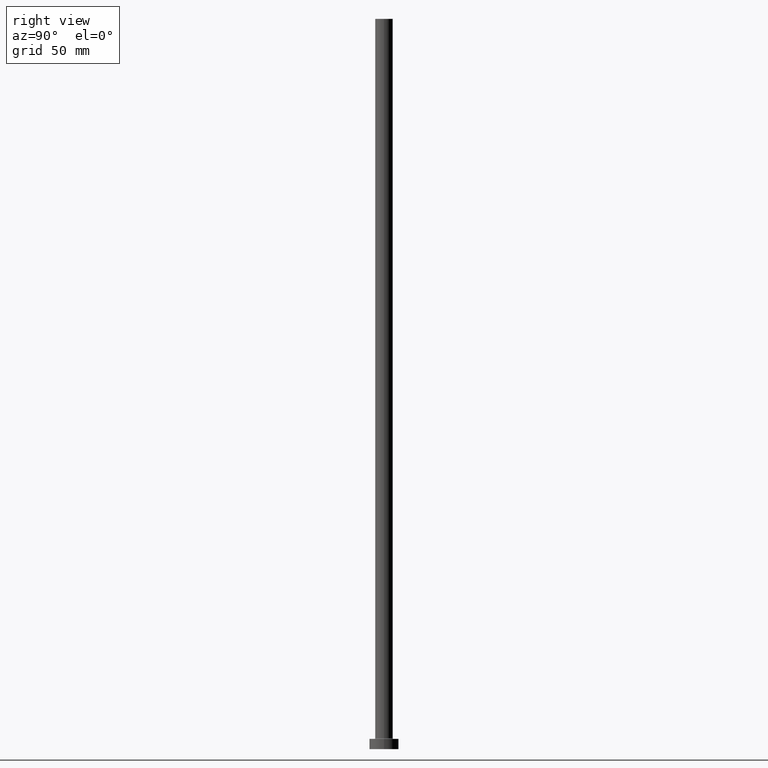
[diagram: clean part render]
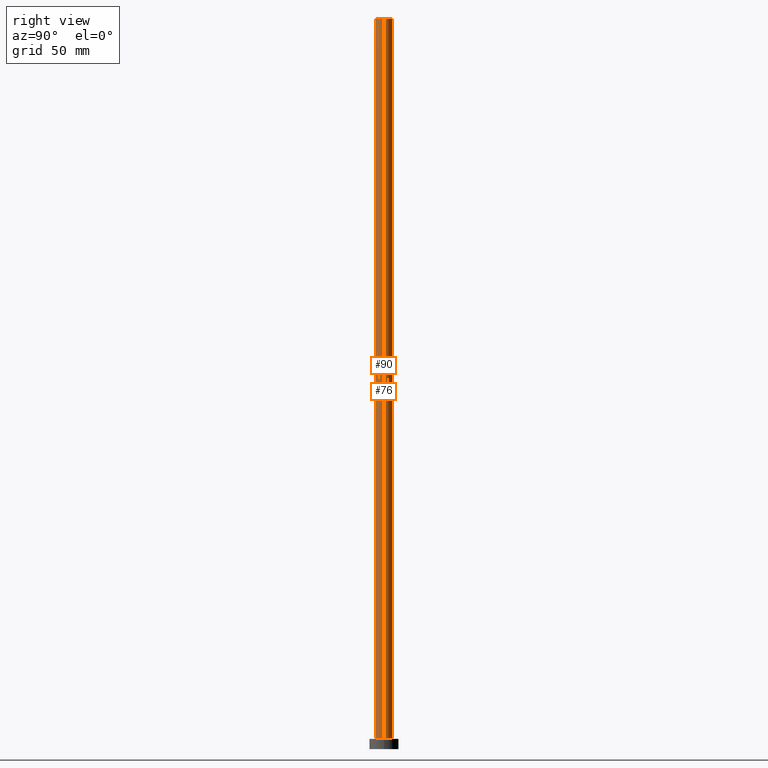
[diagram: same view with one multi-face feature highlighted, each face labeled with its STEP entity id]
A machine part, right view. The highlighted faces form ONE feature: a constant-radius fillet chain: 2 tangent blend faces with common blend radius 6 mm. The faces share edges in the B-rep.
Their STEP definitions:
[1] entity #76 (Cylinder):
#12 = DIRECTION ( 'NONE',  ( -0.000000000000000000, -0.000000000000000000, -1.000000000000000000 ) ) ;
#13 = EDGE_CURVE ( 'NONE', #358, #191, #260, .T. ) ;
#32 = DIRECTION ( 'NONE',  ( 1.000000000000000000, 0.000000000000000000, 0.000000000000000000 ) ) ;
#45 = AXIS2_PLACEMENT_3D ( 'NONE', #73, #223, #366 ) ;
#66 = CARTESIAN_POINT ( 'NONE',  ( 6.000000000000000888, 7.347880794884120722E-16, 500.0000000000000000 ) ) ;
#71 = CARTESIAN_POINT ( 'NONE',  ( 0.000000000000000000, 0.000000000000000000, 500.0000000000000000 ) ) ;
#73 = CARTESIAN_POINT ( 'NONE',  ( 0.000000000000000000, 0.000000000000000000, 7.500000000000007105 ) ) ;
#76 = ADVANCED_FACE ( 'NONE', ( #440 ), #89, .T. ) ;
#89 = CYLINDRICAL_SURFACE ( 'NONE', #160, 6.000000000000000888 ) ;
#101 = CARTESIAN_POINT ( 'NONE',  ( 6.000000000000000888, 7.347880794884120722E-16, 7.500000000000007105 ) ) ;
#107 = EDGE_LOOP ( 'NONE', ( #387, #297, #108, #275 ) ) ;
#108 = ORIENTED_EDGE ( 'NONE', *, *, #13, .T. ) ;
#132 = CARTESIAN_POINT ( 'NONE',  ( -6.000000000000000888, 0.000000000000000000, 7.500000000000007105 ) ) ;
#151 = DIRECTION ( 'NONE',  ( -1.000000000000000000, 0.000000000000000000, 0.000000000000000000 ) ) ;
#156 = AXIS2_PLACEMENT_3D ( 'NONE', #71, #362, #32 ) ;
#160 = AXIS2_PLACEMENT_3D ( 'NONE', #341, #12, #151 ) ;
#173 = CARTESIAN_POINT ( 'NONE',  ( -6.000000000000000888, 0.000000000000000000, 500.0000000000000000 ) ) ;
#186 = DIRECTION ( 'NONE',  ( -0.000000000000000000, -0.000000000000000000, -1.000000000000000000 ) ) ;
#191 = VERTEX_POINT ( 'NONE', #132 ) ;
#195 = VERTEX_POINT ( 'NONE', #173 ) ;
#210 = LINE ( 'NONE', #392, #314 ) ;
#212 = DIRECTION ( 'NONE',  ( -0.000000000000000000, -0.000000000000000000, -1.000000000000000000 ) ) ;
#223 = DIRECTION ( 'NONE',  ( 0.000000000000000000, 0.000000000000000000, 1.000000000000000000 ) ) ;
#239 = VERTEX_POINT ( 'NONE', #66 ) ;
#260 = CIRCLE ( 'NONE', #45, 6.000000000000000888 ) ;
#273 = EDGE_CURVE ( 'NONE', #239, #358, #210, .T. ) ;
#275 = ORIENTED_EDGE ( 'NONE', *, *, #353, .F. ) ;
#293 = CARTESIAN_POINT ( 'NONE',  ( -6.000000000000000888, 0.000000000000000000, 500.0000000000000000 ) ) ;
#296 = LINE ( 'NONE', #293, #332 ) ;
#297 = ORIENTED_EDGE ( 'NONE', *, *, #273, .T. ) ;
#314 = VECTOR ( 'NONE', #212, 1000.000000000000000 ) ;
#332 = VECTOR ( 'NONE', #186, 1000.000000000000000 ) ;
#341 = CARTESIAN_POINT ( 'NONE',  ( 0.000000000000000000, 0.000000000000000000, 500.0000000000000000 ) ) ;
#353 = EDGE_CURVE ( 'NONE', #195, #191, #296, .T. ) ;
#358 = VERTEX_POINT ( 'NONE', #101 ) ;
#362 = DIRECTION ( 'NONE',  ( 0.000000000000000000, 0.000000000000000000, 1.000000000000000000 ) ) ;
#366 = DIRECTION ( 'NONE',  ( 1.000000000000000000, 0.000000000000000000, 0.000000000000000000 ) ) ;
#367 = CIRCLE ( 'NONE', #156, 6.000000000000000888 ) ;
#387 = ORIENTED_EDGE ( 'NONE', *, *, #433, .F. ) ;
#392 = CARTESIAN_POINT ( 'NONE',  ( 6.000000000000000888, 7.347880794884120722E-16, 500.0000000000000000 ) ) ;
#433 = EDGE_CURVE ( 'NONE', #239, #195, #367, .T. ) ;
#440 = FACE_OUTER_BOUND ( 'NONE', #107, .T. ) ;
[2] entity #90 (Cylinder):
#4 = AXIS2_PLACEMENT_3D ( 'NONE', #431, #364, #299 ) ;
#8 = DIRECTION ( 'NONE',  ( -1.000000000000000000, 0.000000000000000000, 0.000000000000000000 ) ) ;
#17 = ORIENTED_EDGE ( 'NONE', *, *, #273, .F. ) ;
#46 = CARTESIAN_POINT ( 'NONE',  ( 0.000000000000000000, 0.000000000000000000, 7.500000000000007105 ) ) ;
#48 = DIRECTION ( 'NONE',  ( 1.000000000000000000, 0.000000000000000000, 0.000000000000000000 ) ) ;
#49 = CYLINDRICAL_SURFACE ( 'NONE', #384, 6.000000000000000888 ) ;
#66 = CARTESIAN_POINT ( 'NONE',  ( 6.000000000000000888, 7.347880794884120722E-16, 500.0000000000000000 ) ) ;
#90 = ADVANCED_FACE ( 'NONE', ( #233 ), #49, .T. ) ;
#101 = CARTESIAN_POINT ( 'NONE',  ( 6.000000000000000888, 7.347880794884120722E-16, 7.500000000000007105 ) ) ;
#116 = DIRECTION ( 'NONE',  ( -0.000000000000000000, -0.000000000000000000, -1.000000000000000000 ) ) ;
#122 = EDGE_CURVE ( 'NONE', #191, #358, #424, .T. ) ;
#126 = CIRCLE ( 'NONE', #4, 6.000000000000000888 ) ;
#132 = CARTESIAN_POINT ( 'NONE',  ( -6.000000000000000888, 0.000000000000000000, 7.500000000000007105 ) ) ;
#173 = CARTESIAN_POINT ( 'NONE',  ( -6.000000000000000888, 0.000000000000000000, 500.0000000000000000 ) ) ;
#186 = DIRECTION ( 'NONE',  ( -0.000000000000000000, -0.000000000000000000, -1.000000000000000000 ) ) ;
#191 = VERTEX_POINT ( 'NONE', #132 ) ;
#195 = VERTEX_POINT ( 'NONE', #173 ) ;
#210 = LINE ( 'NONE', #392, #314 ) ;
#212 = DIRECTION ( 'NONE',  ( -0.000000000000000000, -0.000000000000000000, -1.000000000000000000 ) ) ;
#233 = FACE_OUTER_BOUND ( 'NONE', #448, .T. ) ;
#236 = ORIENTED_EDGE ( 'NONE', *, *, #353, .T. ) ;
#239 = VERTEX_POINT ( 'NONE', #66 ) ;
#270 = CARTESIAN_POINT ( 'NONE',  ( 0.000000000000000000, 0.000000000000000000, 500.0000000000000000 ) ) ;
#273 = EDGE_CURVE ( 'NONE', #239, #358, #210, .T. ) ;
#289 = ORIENTED_EDGE ( 'NONE', *, *, #379, .F. ) ;
#293 = CARTESIAN_POINT ( 'NONE',  ( -6.000000000000000888, 0.000000000000000000, 500.0000000000000000 ) ) ;
#296 = LINE ( 'NONE', #293, #332 ) ;
#299 = DIRECTION ( 'NONE',  ( 1.000000000000000000, 0.000000000000000000, 0.000000000000000000 ) ) ;
#306 = ORIENTED_EDGE ( 'NONE', *, *, #122, .T. ) ;
#314 = VECTOR ( 'NONE', #212, 1000.000000000000000 ) ;
#332 = VECTOR ( 'NONE', #186, 1000.000000000000000 ) ;
#353 = EDGE_CURVE ( 'NONE', #195, #191, #296, .T. ) ;
#358 = VERTEX_POINT ( 'NONE', #101 ) ;
#364 = DIRECTION ( 'NONE',  ( 0.000000000000000000, 0.000000000000000000, 1.000000000000000000 ) ) ;
#377 = DIRECTION ( 'NONE',  ( 0.000000000000000000, 0.000000000000000000, 1.000000000000000000 ) ) ;
#379 = EDGE_CURVE ( 'NONE', #195, #239, #126, .T. ) ;
#384 = AXIS2_PLACEMENT_3D ( 'NONE', #270, #116, #8 ) ;
#392 = CARTESIAN_POINT ( 'NONE',  ( 6.000000000000000888, 7.347880794884120722E-16, 500.0000000000000000 ) ) ;
#410 = AXIS2_PLACEMENT_3D ( 'NONE', #46, #377, #48 ) ;
#424 = CIRCLE ( 'NONE', #410, 6.000000000000000888 ) ;
#431 = CARTESIAN_POINT ( 'NONE',  ( 0.000000000000000000, 0.000000000000000000, 500.0000000000000000 ) ) ;
#448 = EDGE_LOOP ( 'NONE', ( #17, #289, #236, #306 ) ) ;